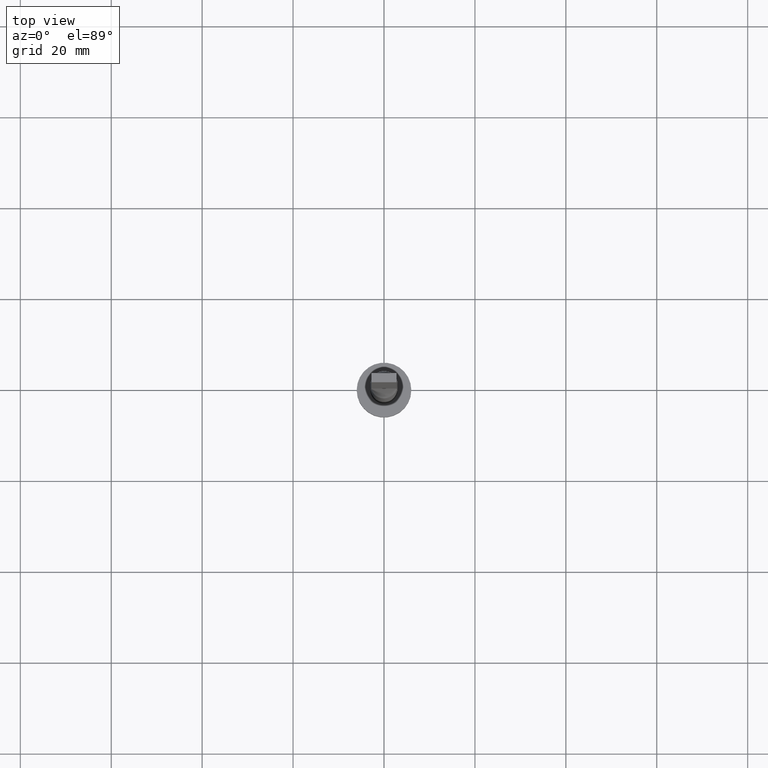
[diagram: clean part render]
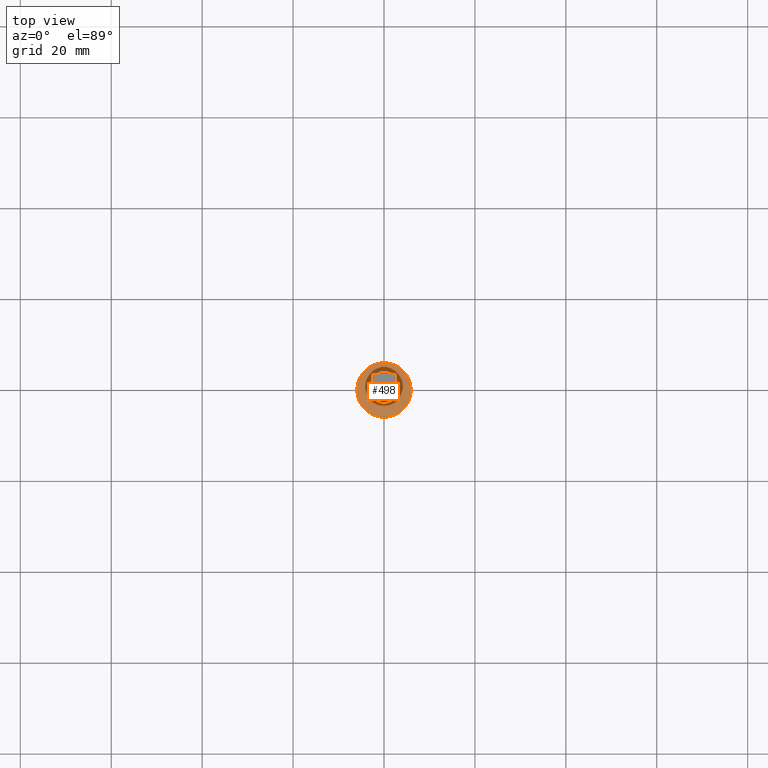
[diagram: same view with one face highlighted and labeled with its STEP entity id]
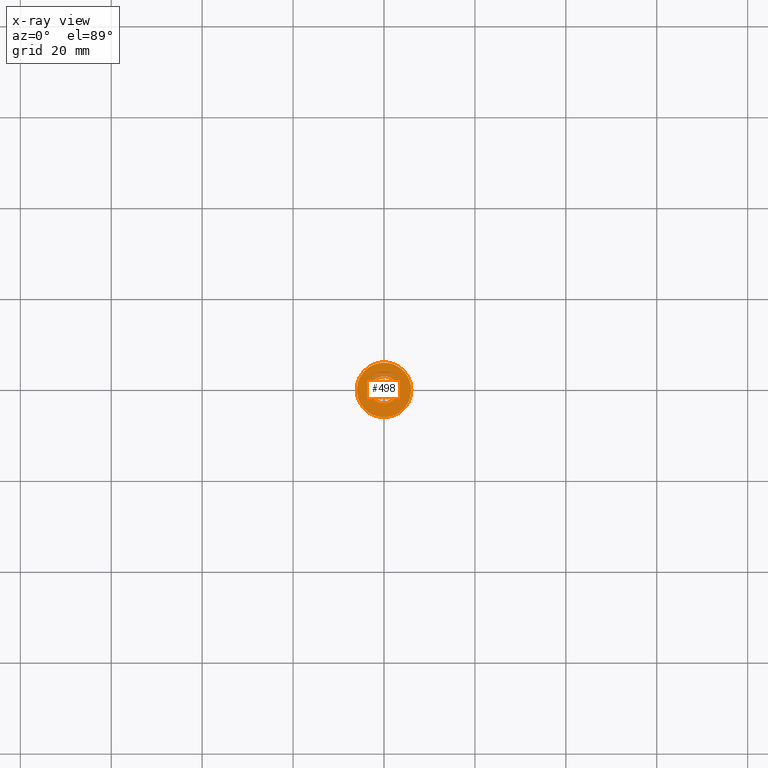
[diagram: x-ray of the same camera — body ghosted, the highlighted face saturated]
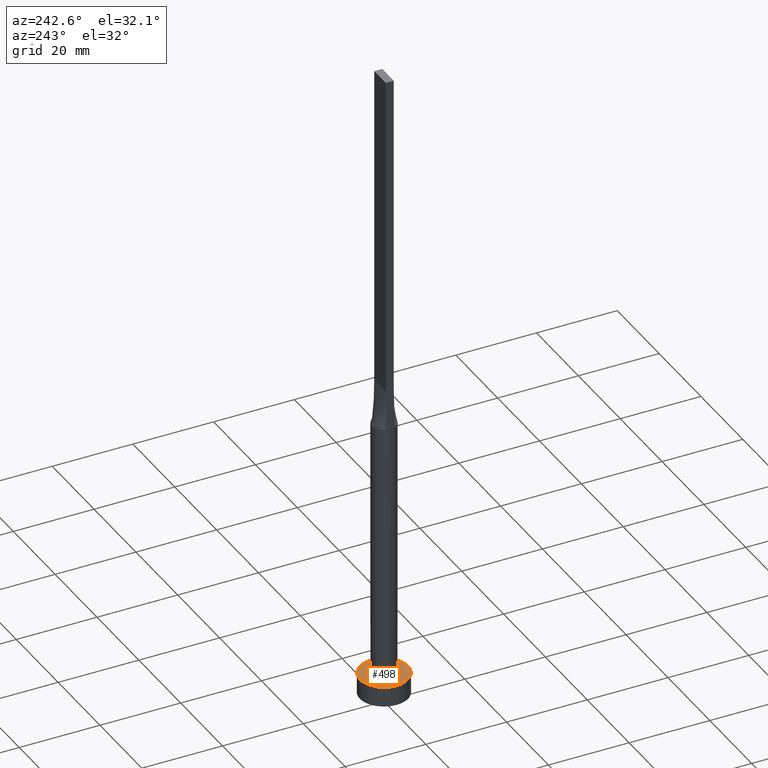
[diagram: same view with one face highlighted and labeled with its STEP entity id]
A machine part, top view. The second image highlights one B-rep face of the part: STEP entity #498.
The next image is the same camera in x-ray: the body ghosted, the highlighted face saturated — about 10% of this face is hidden behind the body in this view.
A second angle (auxiliary view) of the same face is appended — the face is thin or edge-on in the first view.
In plain terms, the highlighted planar face has unit normal (0, 0, 1).
Its self-contained STEP definition (entity closure, byte-faithful):
#8 = DIRECTION ( 'NONE',  ( 1.000000000000000000, 0.000000000000000000, -0.000000000000000000 ) ) ;
#12 = VERTEX_POINT ( 'NONE', #59 ) ;
#18 = EDGE_CURVE ( 'NONE', #450, #12, #317, .T. ) ;
#37 = CIRCLE ( 'NONE', #360, 6.000000000000000888 ) ;
#59 = CARTESIAN_POINT ( 'NONE',  ( 3.000000000000000444, 3.673940397442060361E-16, 5.000000000000000000 ) ) ;
#76 = CARTESIAN_POINT ( 'NONE',  ( -3.000000000000000444, 0.000000000000000000, 5.000000000000000000 ) ) ;
#77 = CARTESIAN_POINT ( 'NONE',  ( 0.000000000000000000, 0.000000000000000000, 5.000000000000000000 ) ) ;
#81 = CARTESIAN_POINT ( 'NONE',  ( 6.000000000000000888, 7.347880794884120722E-16, 5.000000000000000000 ) ) ;
#103 = CIRCLE ( 'NONE', #566, 6.000000000000000888 ) ;
#116 = DIRECTION ( 'NONE',  ( 1.000000000000000000, 0.000000000000000000, 0.000000000000000000 ) ) ;
#121 = CIRCLE ( 'NONE', #314, 3.000000000000000444 ) ;
#140 = AXIS2_PLACEMENT_3D ( 'NONE', #524, #293, #8 ) ;
#162 = FACE_BOUND ( 'NONE', #189, .T. ) ;
#165 = CARTESIAN_POINT ( 'NONE',  ( 0.000000000000000000, 0.000000000000000000, 5.000000000000000000 ) ) ;
#189 = EDGE_LOOP ( 'NONE', ( #485, #261 ) ) ;
#202 = DIRECTION ( 'NONE',  ( 1.000000000000000000, 0.000000000000000000, 0.000000000000000000 ) ) ;
#244 = DIRECTION ( 'NONE',  ( 1.000000000000000000, 0.000000000000000000, 0.000000000000000000 ) ) ;
#249 = DIRECTION ( 'NONE',  ( 0.000000000000000000, 0.000000000000000000, 1.000000000000000000 ) ) ;
#253 = FACE_OUTER_BOUND ( 'NONE', #290, .T. ) ;
#261 = ORIENTED_EDGE ( 'NONE', *, *, #435, .F. ) ;
#289 = DIRECTION ( 'NONE',  ( 0.000000000000000000, 0.000000000000000000, 1.000000000000000000 ) ) ;
#290 = EDGE_LOOP ( 'NONE', ( #394, #344 ) ) ;
#293 = DIRECTION ( 'NONE',  ( 0.000000000000000000, 0.000000000000000000, 1.000000000000000000 ) ) ;
#303 = DIRECTION ( 'NONE',  ( 0.000000000000000000, 0.000000000000000000, 1.000000000000000000 ) ) ;
#308 = AXIS2_PLACEMENT_3D ( 'NONE', #77, #289, #475 ) ;
#314 = AXIS2_PLACEMENT_3D ( 'NONE', #165, #303, #116 ) ;
#317 = CIRCLE ( 'NONE', #308, 3.000000000000000444 ) ;
#326 = EDGE_CURVE ( 'NONE', #358, #570, #103, .T. ) ;
#329 = CARTESIAN_POINT ( 'NONE',  ( 0.000000000000000000, 0.000000000000000000, 5.000000000000000000 ) ) ;
#335 = PLANE ( 'NONE',  #140 ) ;
#344 = ORIENTED_EDGE ( 'NONE', *, *, #554, .T. ) ;
#358 = VERTEX_POINT ( 'NONE', #393 ) ;
#360 = AXIS2_PLACEMENT_3D ( 'NONE', #436, #572, #202 ) ;
#393 = CARTESIAN_POINT ( 'NONE',  ( -6.000000000000000888, 0.000000000000000000, 5.000000000000000000 ) ) ;
#394 = ORIENTED_EDGE ( 'NONE', *, *, #326, .T. ) ;
#435 = EDGE_CURVE ( 'NONE', #12, #450, #121, .T. ) ;
#436 = CARTESIAN_POINT ( 'NONE',  ( 0.000000000000000000, 0.000000000000000000, 5.000000000000000000 ) ) ;
#450 = VERTEX_POINT ( 'NONE', #76 ) ;
#475 = DIRECTION ( 'NONE',  ( 1.000000000000000000, 0.000000000000000000, 0.000000000000000000 ) ) ;
#485 = ORIENTED_EDGE ( 'NONE', *, *, #18, .F. ) ;
#498 = ADVANCED_FACE ( 'NONE', ( #162, #253 ), #335, .T. ) ;
#524 = CARTESIAN_POINT ( 'NONE',  ( 0.000000000000000000, 0.000000000000000000, 5.000000000000000000 ) ) ;
#554 = EDGE_CURVE ( 'NONE', #570, #358, #37, .T. ) ;
#566 = AXIS2_PLACEMENT_3D ( 'NONE', #329, #249, #244 ) ;
#570 = VERTEX_POINT ( 'NONE', #81 ) ;
#572 = DIRECTION ( 'NONE',  ( 0.000000000000000000, 0.000000000000000000, 1.000000000000000000 ) ) ;